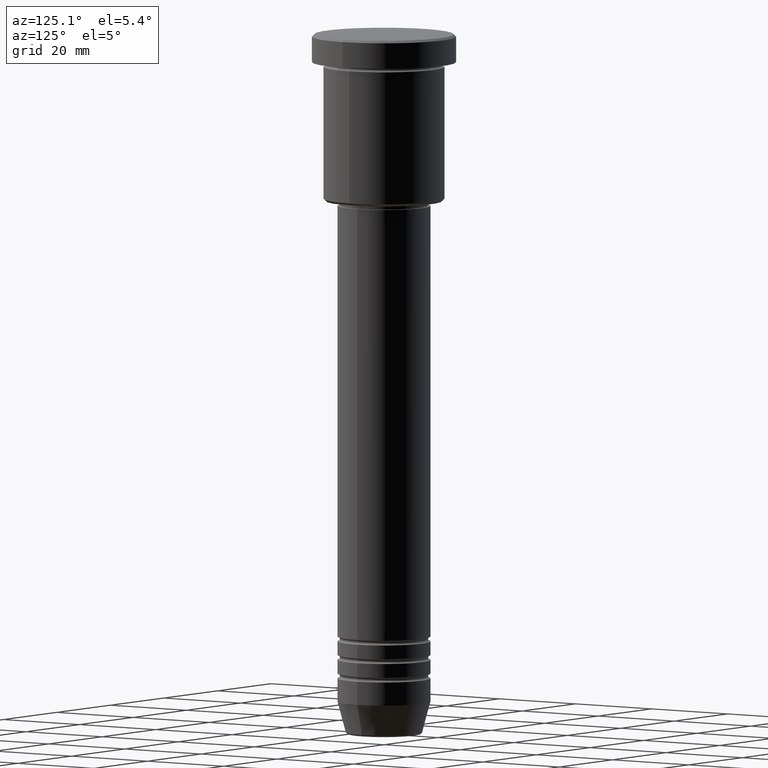
[diagram: clean part render]
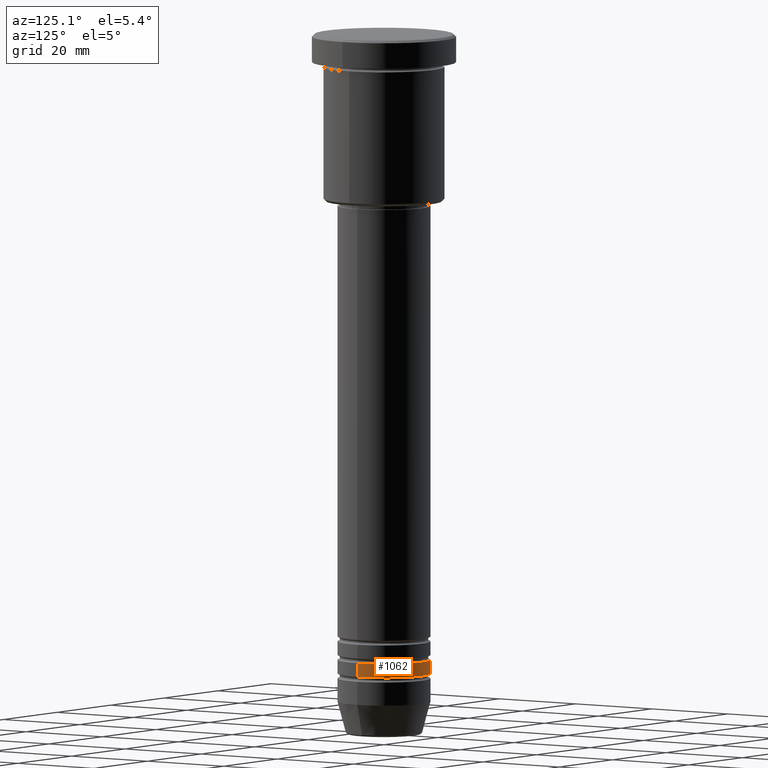
[diagram: same view with one face highlighted and labeled with its STEP entity id]
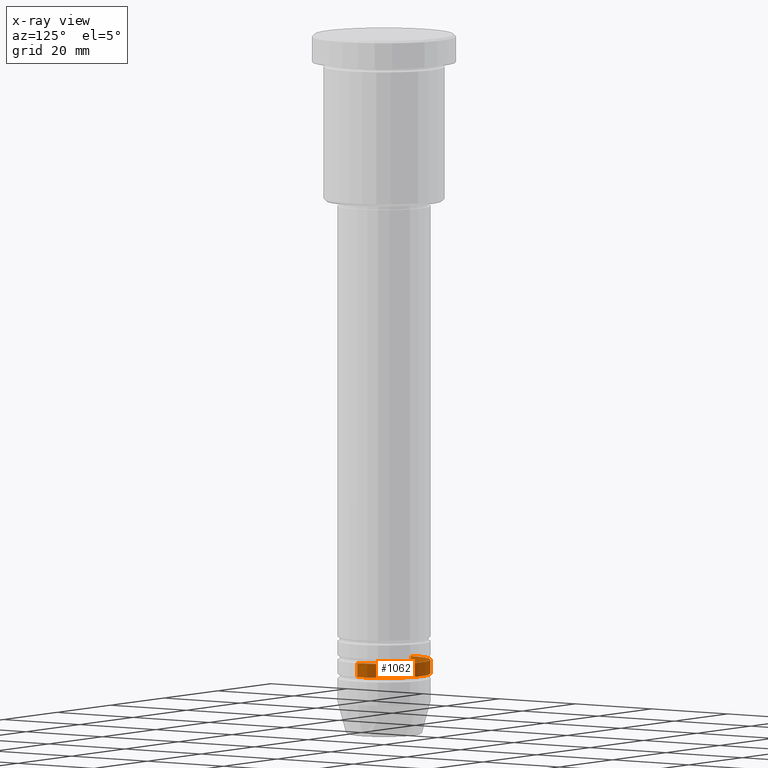
[diagram: x-ray of the same camera — body ghosted, the highlighted face saturated]
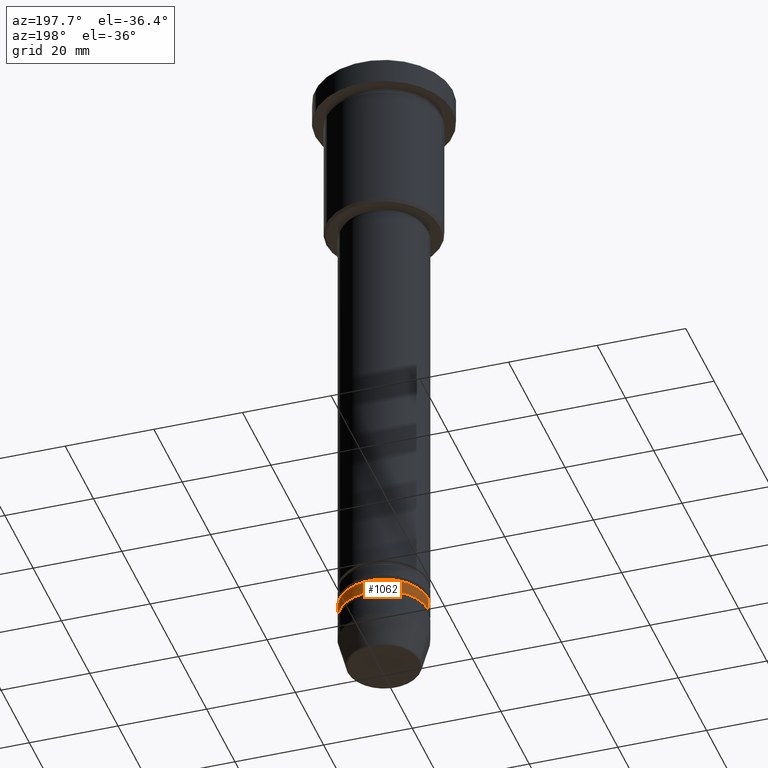
[diagram: same view with one face highlighted and labeled with its STEP entity id]
A machine part, auxiliary view. The second image highlights one B-rep face of the part: STEP entity #1062.
The next image is the same camera in x-ray: the body ghosted, the highlighted face saturated — about 0% of this face is hidden behind the body in this view.
A second angle (auxiliary view) of the same face is appended — the face is thin or edge-on in the first view.
In plain terms, the highlighted cylindrical surface (partial cylindrical patch) has radius 10 mm, axis along (-0, -0, 1).
Its self-contained STEP definition (entity closure, byte-faithful):
#1 = VERTEX_POINT ( 'NONE', #1005 ) ;
#57 = AXIS2_PLACEMENT_3D ( 'NONE', #183, #164, #249 ) ;
#83 = CARTESIAN_POINT ( 'NONE',  ( 10.00000000000000178, 0.000000000000000000, 0.000000000000000000 ) ) ;
#93 = VERTEX_POINT ( 'NONE', #484 ) ;
#122 = EDGE_CURVE ( 'NONE', #163, #93, #1148, .T. ) ;
#143 = DIRECTION ( 'NONE',  ( -0.000000000000000000, -0.000000000000000000, 1.000000000000000000 ) ) ;
#163 = VERTEX_POINT ( 'NONE', #332 ) ;
#164 = DIRECTION ( 'NONE',  ( -0.000000000000000000, -0.000000000000000000, 1.000000000000000000 ) ) ;
#169 = ORIENTED_EDGE ( 'NONE', *, *, #961, .F. ) ;
#183 = CARTESIAN_POINT ( 'NONE',  ( 0.000000000000000000, 0.000000000000000000, 0.000000000000000000 ) ) ;
#211 = DIRECTION ( 'NONE',  ( -0.000000000000000000, -0.000000000000000000, 1.000000000000000000 ) ) ;
#249 = DIRECTION ( 'NONE',  ( 1.000000000000000000, 0.000000000000000000, 0.000000000000000000 ) ) ;
#255 = LINE ( 'NONE', #83, #1065 ) ;
#268 = VECTOR ( 'NONE', #211, 1000.000000000000000 ) ;
#310 = AXIS2_PLACEMENT_3D ( 'NONE', #785, #143, #339 ) ;
#332 = CARTESIAN_POINT ( 'NONE',  ( 10.00000000000000000, 0.000000000000000000, -134.9999999999998863 ) ) ;
#339 = DIRECTION ( 'NONE',  ( 1.000000000000000000, 0.000000000000000000, 0.000000000000000000 ) ) ;
#458 = DIRECTION ( 'NONE',  ( -0.000000000000000000, -0.000000000000000000, 1.000000000000000000 ) ) ;
#481 = CIRCLE ( 'NONE', #745, 10.00000000000000178 ) ;
#484 = CARTESIAN_POINT ( 'NONE',  ( -10.00000000000000000, 1.224646799147353256E-15, -134.9999999999998863 ) ) ;
#522 = CARTESIAN_POINT ( 'NONE',  ( -10.00000000000000178, 1.224646799147353454E-15, -137.9999999999998863 ) ) ;
#525 = VERTEX_POINT ( 'NONE', #522 ) ;
#553 = EDGE_LOOP ( 'NONE', ( #697, #1159, #1074, #169 ) ) ;
#611 = DIRECTION ( 'NONE',  ( -0.000000000000000000, -0.000000000000000000, 1.000000000000000000 ) ) ;
#659 = LINE ( 'NONE', #1014, #268 ) ;
#697 = ORIENTED_EDGE ( 'NONE', *, *, #880, .T. ) ;
#745 = AXIS2_PLACEMENT_3D ( 'NONE', #826, #458, #818 ) ;
#785 = CARTESIAN_POINT ( 'NONE',  ( 0.000000000000000000, 0.000000000000000000, -134.9999999999998863 ) ) ;
#818 = DIRECTION ( 'NONE',  ( 1.000000000000000000, 0.000000000000000000, 0.000000000000000000 ) ) ;
#826 = CARTESIAN_POINT ( 'NONE',  ( 0.000000000000000000, 0.000000000000000000, -137.9999999999998863 ) ) ;
#880 = EDGE_CURVE ( 'NONE', #1, #525, #481, .T. ) ;
#961 = EDGE_CURVE ( 'NONE', #1, #163, #255, .T. ) ;
#977 = CYLINDRICAL_SURFACE ( 'NONE', #57, 10.00000000000000178 ) ;
#984 = FACE_OUTER_BOUND ( 'NONE', #553, .T. ) ;
#1005 = CARTESIAN_POINT ( 'NONE',  ( 10.00000000000000178, 0.000000000000000000, -137.9999999999998863 ) ) ;
#1014 = CARTESIAN_POINT ( 'NONE',  ( -10.00000000000000178, 1.224646799147353454E-15, 0.000000000000000000 ) ) ;
#1062 = ADVANCED_FACE ( 'NONE', ( #984 ), #977, .T. ) ;
#1065 = VECTOR ( 'NONE', #611, 1000.000000000000000 ) ;
#1074 = ORIENTED_EDGE ( 'NONE', *, *, #122, .F. ) ;
#1148 = CIRCLE ( 'NONE', #310, 10.00000000000000000 ) ;
#1154 = EDGE_CURVE ( 'NONE', #525, #93, #659, .T. ) ;
#1159 = ORIENTED_EDGE ( 'NONE', *, *, #1154, .T. ) ;